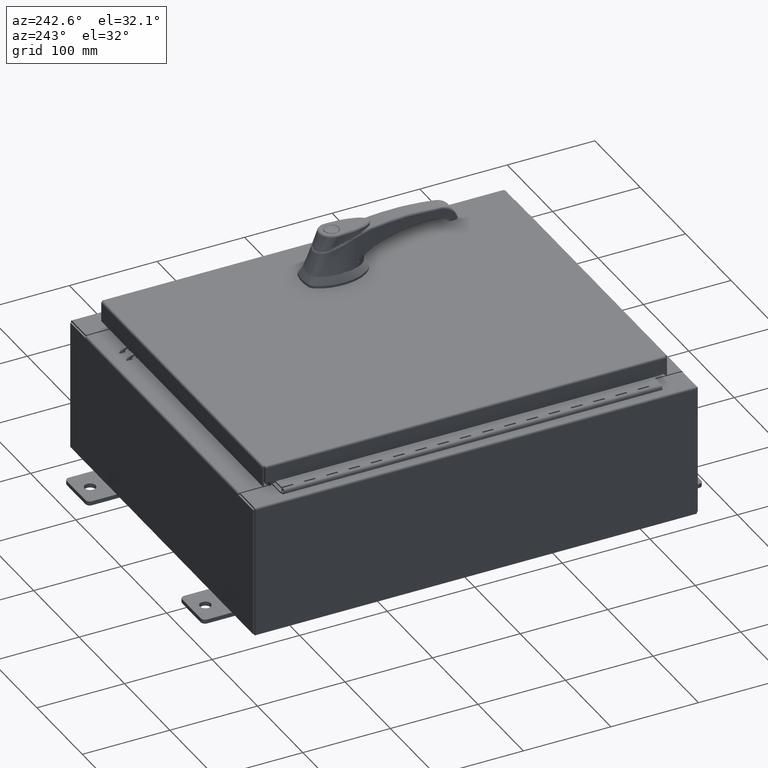
[diagram: clean part render]
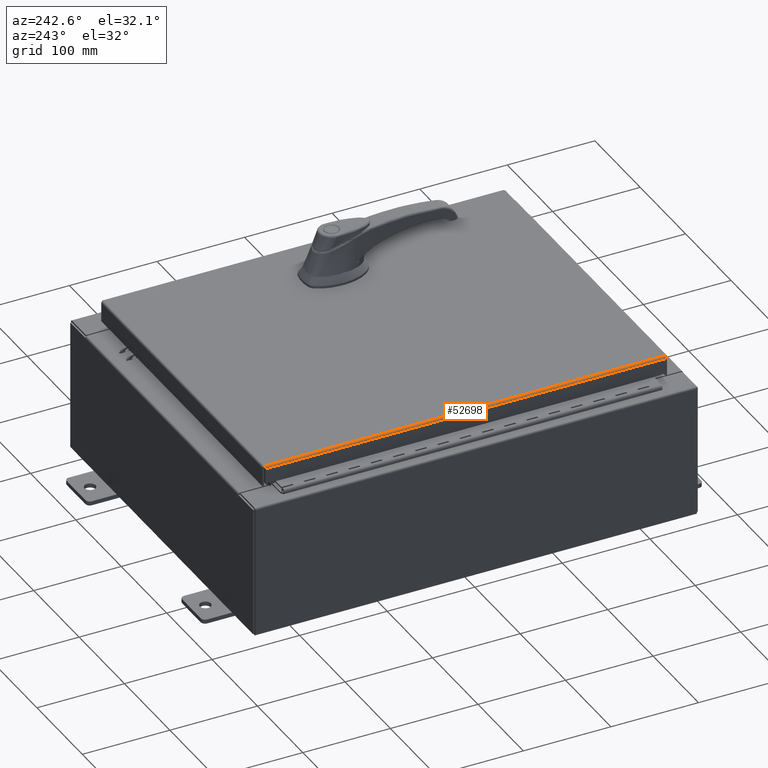
[diagram: same view with one face highlighted and labeled with its STEP entity id]
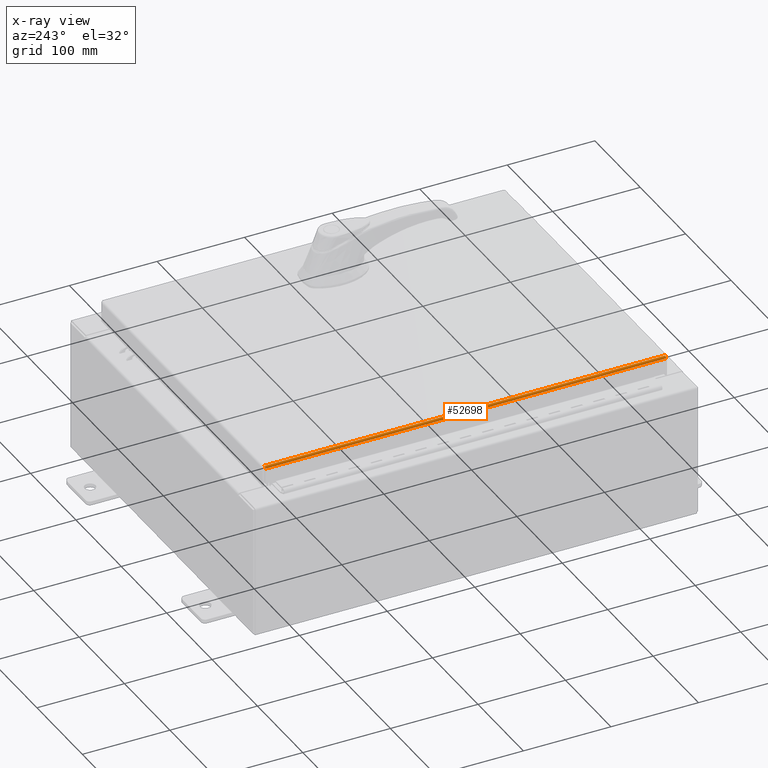
[diagram: x-ray of the same camera — body ghosted, the highlighted face saturated]
A machine part, auxiliary view. The second image highlights one B-rep face of the part: STEP entity #52698.
The next image is the same camera in x-ray: the body ghosted, the highlighted face saturated — about 0% of this face is hidden behind the body in this view.
In plain terms, the highlighted cylindrical surface (edge-blend (fillet) strip) has radius 2.2276 mm, axis along (0, 1, 0).
Its self-contained STEP definition (entity closure, byte-faithful):
#1814 = DIRECTION ( 'NONE',  ( 3.645815397208356400E-031, -1.000000000000000000, -1.074717912135910000E-045 ) ) ;
#2670 = CARTESIAN_POINT ( 'NONE',  ( -6.990299999999997700, 9.006300000000001300, -0.08770000000000030500 ) ) ;
#3098 = CARTESIAN_POINT ( 'NONE',  ( -7.034467384578526600, 9.005919288125424400, -0.01106893374133176100 ) ) ;
#6237 = CARTESIAN_POINT ( 'NONE',  ( -7.034467384578525700, -9.005919288125420900, -0.01106893374133176100 ) ) ;
#11519 = EDGE_CURVE ( 'NONE', #43802, #106952, #29668, .T. ) ;
#11614 = CARTESIAN_POINT ( 'NONE',  ( -7.001779903154991700, 9.006204822031355300, -2.037547758946368100E-016 ) ) ;
#14736 = CARTESIAN_POINT ( 'NONE',  ( -7.060430782078317000, -9.005633754219486400, -0.03380425265820009900 ) ) ;
#17452 = CARTESIAN_POINT ( 'NONE',  ( -6.990299999999997700, -9.006299999999997800, -2.219626494852214000E-016 ) ) ;
#19462 = EDGE_CURVE ( 'NONE', #96623, #43802, #51220, .T. ) ;
#20779 = AXIS2_PLACEMENT_3D ( 'NONE', #2670, #87130, #36211 ) ;
#20865 = EDGE_CURVE ( 'NONE', #71112, #106952, #36822, .T. ) ;
#22840 = CARTESIAN_POINT ( 'NONE',  ( -7.001779903154991700, -9.006204822031353500, -2.043883832173860400E-016 ) ) ;
#22952 = CYLINDRICAL_SURFACE ( 'NONE', #20779, 0.08770000000000026400 ) ;
#23203 = CARTESIAN_POINT ( 'NONE',  ( -7.075717403743809100, -9.005348220313557300, -0.06474471054169118900 ) ) ;
#28184 = CARTESIAN_POINT ( 'NONE',  ( -7.077999999999998500, 9.005157864376270600, -0.08770000000000004200 ) ) ;
#29668 = B_SPLINE_CURVE_WITH_KNOTS ( 'NONE', 3,
 ( #56713, #22840, #31307, #6237, #65166, #14736, #73675, #23203, #82169, #31677 ),
 .UNSPECIFIED., .F., .F.,
 ( 4, 2, 2, 2, 4 ),
 ( 0.0000000000000000000, 0.2500000000000000000, 0.5000000000000000000, 0.7500000000000000000, 1.000000000000000000 ),
 .UNSPECIFIED. ) ;
#31307 = CARTESIAN_POINT ( 'NONE',  ( -7.013255289458308900, -9.006109644062711100, -0.002282596256188924700 ) ) ;
#31677 = CARTESIAN_POINT ( 'NONE',  ( -7.077999999999998500, -9.005157864376265300, -0.08770000000000007000 ) ) ;
#36211 = DIRECTION ( 'NONE',  ( -1.000000000000000000, 0.0000000000000000000, 3.114992011019675100E-015 ) ) ;
#36653 = CARTESIAN_POINT ( 'NONE',  ( -7.077999999999998500, 9.005253042344914900, -0.07622009684500732900 ) ) ;
#36822 = LINE ( 'NONE', #102816, #56542 ) ;
#43802 = VERTEX_POINT ( 'NONE', #17452 ) ;
#45123 = CARTESIAN_POINT ( 'NONE',  ( -7.066931066258662900, 9.005538576250845800, -0.04353261542147222200 ) ) ;
#47781 = ORIENTED_EDGE ( 'NONE', *, *, #19462, .F. ) ;
#51220 = LINE ( 'NONE', #76343, #73660 ) ;
#52698 = ADVANCED_FACE ( 'NONE', ( #90251 ), #22952, .T. ) ;
#53561 = CARTESIAN_POINT ( 'NONE',  ( -7.044195747341797500, 9.005824110156780200, -0.01756921792167976500 ) ) ;
#55573 = ORIENTED_EDGE ( 'NONE', *, *, #11519, .F. ) ;
#56542 = VECTOR ( 'NONE', #1814, 39.37007874015748100 ) ;
#56713 = CARTESIAN_POINT ( 'NONE',  ( -6.990299999999997700, -9.006299999999997800, -2.219626494852214000E-016 ) ) ;
#57930 = ORIENTED_EDGE ( 'NONE', *, *, #20865, .T. ) ;
#62063 = CARTESIAN_POINT ( 'NONE',  ( -7.013255289458305300, 9.006109644062711100, -0.002282596256188923800 ) ) ;
#65110 = CARTESIAN_POINT ( 'NONE',  ( -6.990299999999997700, 9.006300000000001300, -2.048885995248197400E-016 ) ) ;
#65166 = CARTESIAN_POINT ( 'NONE',  ( -7.044195747341798400, -9.005824110156778400, -0.01756921792167976500 ) ) ;
#70530 = CARTESIAN_POINT ( 'NONE',  ( -6.990299999999997700, 9.006300000000001300, -2.048885995248197400E-016 ) ) ;
#71112 = VERTEX_POINT ( 'NONE', #94728 ) ;
#73660 = VECTOR ( 'NONE', #92961, 39.37007874015748100 ) ;
#73675 = CARTESIAN_POINT ( 'NONE',  ( -7.066931066258665500, -9.005538576250844000, -0.04353261542147222900 ) ) ;
#76343 = CARTESIAN_POINT ( 'NONE',  ( -6.990299999999997700, 9.006300000000001300, -2.048885995248197400E-016 ) ) ;
#78691 = B_SPLINE_CURVE_WITH_KNOTS ( 'NONE', 3,
 ( #28184, #36653, #95643, #45123, #104102, #53561, #3098, #62063, #11614, #70530 ),
 .UNSPECIFIED., .F., .F.,
 ( 4, 2, 2, 2, 4 ),
 ( 0.0000000000000000000, 0.2500000000000000000, 0.5000000000000000000, 0.7500000000000000000, 1.000000000000000000 ),
 .UNSPECIFIED. ) ;
#80235 = CARTESIAN_POINT ( 'NONE',  ( -7.077999999999998500, -9.005157864376265300, -0.08770000000000007000 ) ) ;
#82169 = CARTESIAN_POINT ( 'NONE',  ( -7.077999999999998500, -9.005253042344911300, -0.07622009684500735700 ) ) ;
#83878 = EDGE_LOOP ( 'NONE', ( #47781, #96583, #57930, #55573 ) ) ;
#87130 = DIRECTION ( 'NONE',  ( -0.0000000000000000000, 1.000000000000000000, -0.0000000000000000000 ) ) ;
#90251 = FACE_OUTER_BOUND ( 'NONE', #83878, .T. ) ;
#92961 = DIRECTION ( 'NONE',  ( 0.0000000000000000000, -1.000000000000000000, 0.0000000000000000000 ) ) ;
#94728 = CARTESIAN_POINT ( 'NONE',  ( -7.077999999999998500, 9.005157864376270600, -0.08770000000000004200 ) ) ;
#95643 = CARTESIAN_POINT ( 'NONE',  ( -7.075717403743809100, 9.005348220313560900, -0.06474471054169118900 ) ) ;
#96583 = ORIENTED_EDGE ( 'NONE', *, *, #108848, .F. ) ;
#96623 = VERTEX_POINT ( 'NONE', #65110 ) ;
#102816 = CARTESIAN_POINT ( 'NONE',  ( -7.077999999999998500, -9.093999999999999400, -0.08770000000000004200 ) ) ;
#104102 = CARTESIAN_POINT ( 'NONE',  ( -7.060430782078318800, 9.005633754219491700, -0.03380425265820009200 ) ) ;
#106952 = VERTEX_POINT ( 'NONE', #80235 ) ;
#108848 = EDGE_CURVE ( 'NONE', #71112, #96623, #78691, .T. ) ;